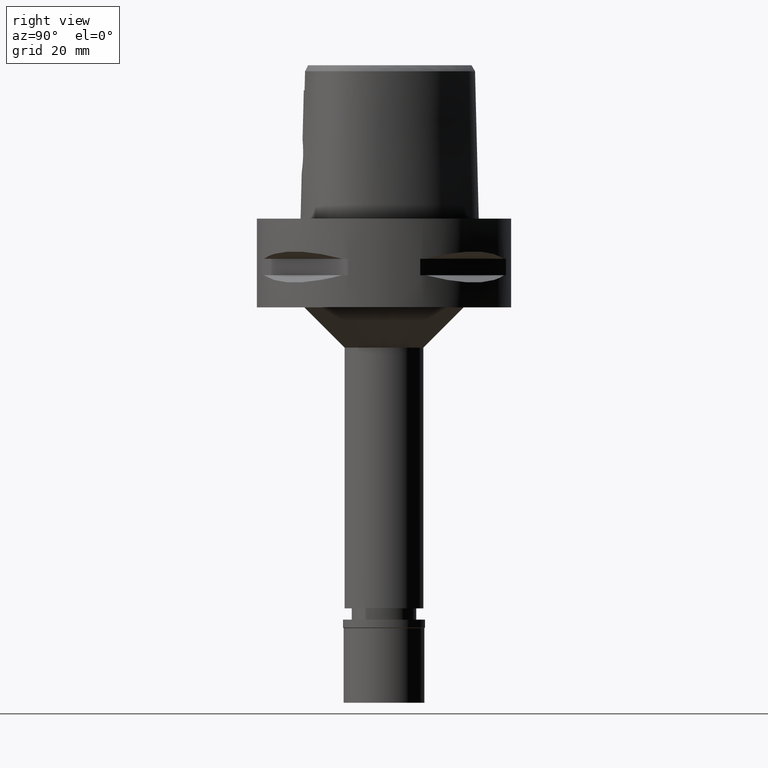
[diagram: clean part render]
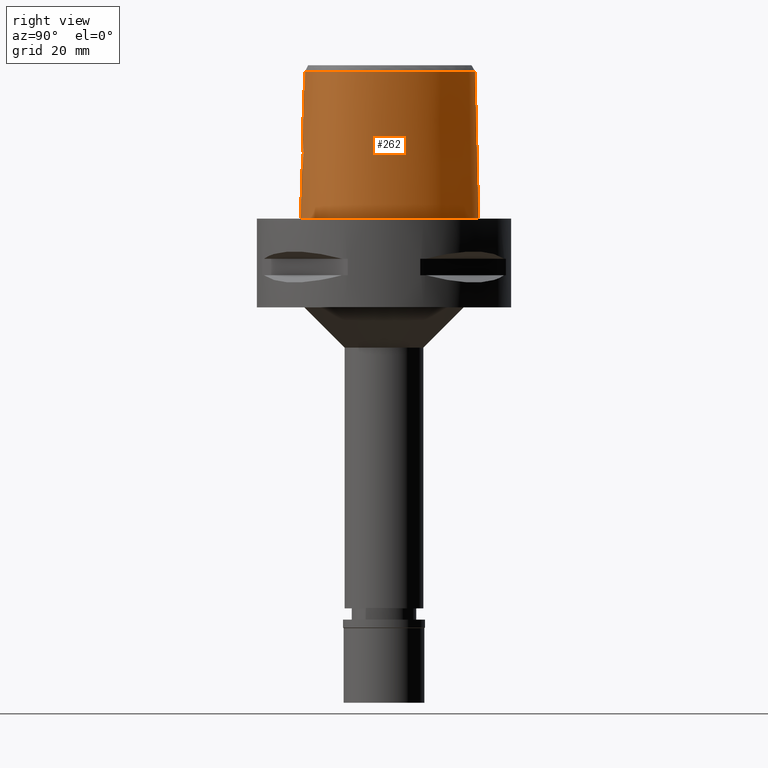
[diagram: same view with one face highlighted and labeled with its STEP entity id]
A machine part, right view. The second image highlights one B-rep face of the part: STEP entity #262.
In plain terms, the highlighted face is a freeform B-spline surface patch.
Its self-contained STEP definition (entity closure, byte-faithful):
#6 = CARTESIAN_POINT ( 'NONE',  ( 21.94536970524000097, -4.102220499718999491, 11.93048562255000000 ) ) ;
#29 = B_SPLINE_CURVE_WITH_KNOTS ( 'NONE', 3,
 ( #3188, #3884, #4318, #2393 ),
 .UNSPECIFIED., .F., .F.,
 ( 4, 4 ),
 ( 0.0000000000000000000, 1.000000000000000000 ),
 .UNSPECIFIED. ) ;
#36 = CARTESIAN_POINT ( 'NONE',  ( 10.91891095221367358, -18.03046396092988601, 36.52186680739949054 ) ) ;
#59 = CARTESIAN_POINT ( 'NONE',  ( 2.113823676601773727, -20.67500005945671404, -2.378463150037998026E-06 ) ) ;
#60 = CARTESIAN_POINT ( 'NONE',  ( 3.637738219117000238, -19.56971420299000286, 36.52185956443999970 ) ) ;
#83 = CARTESIAN_POINT ( 'NONE',  ( 20.09619608768813492, -10.23243839430414148, 36.52186680739949054 ) ) ;
#95 = CARTESIAN_POINT ( 'NONE',  ( 3.644654988696913733, -20.14185568960490258, 13.73169098995751902 ) ) ;
#110 = DIRECTION ( 'NONE',  ( 1.756137887816959434E-12, 0.02499051290962944413, -0.9996876883629776112 ) ) ;
#120 = CARTESIAN_POINT ( 'NONE',  ( 6.344715577655000160, -20.31619965500999925, -0.7304378952583999718 ) ) ;
#123 = CARTESIAN_POINT ( 'NONE',  ( 4.049643110176806893, -20.05399160878187814, 15.43795828973404838 ) ) ;
#144 = CARTESIAN_POINT ( 'NONE',  ( 18.12052889929999822, -13.74516014019999943, 24.59140914036999703 ) ) ;
#146 = CARTESIAN_POINT ( 'NONE',  ( 1.946611601997120244, -20.32311006286647981, 11.93862046598727567 ) ) ;
#166 = CARTESIAN_POINT ( 'NONE',  ( 16.38077671191999940, -14.94316433188999937, 37.25233265818000206 ) ) ;
#168 = CARTESIAN_POINT ( 'NONE',  ( 3.950323019400650892, -20.04135421479582391, 16.40274729697456380 ) ) ;
#193 = CARTESIAN_POINT ( 'NONE',  ( 3.749536200694281618, -20.04778253193092397, 17.03086640830614940 ) ) ;
#215 = CARTESIAN_POINT ( 'NONE',  ( 18.35112148454999925, -13.96357030471000016, 11.93048562255000000 ) ) ;
#243 = CARTESIAN_POINT ( 'NONE',  ( 2.361140904826829701, -20.12552479265204042, 18.79118822093445829 ) ) ;
#262 = ADVANCED_FACE ( 'NONE', ( #2095 ), #2864, .T. ) ;
#289 = CARTESIAN_POINT ( 'NONE',  ( 1.027682876504157905, -20.17741712424492917, 19.45809765211923903 ) ) ;
#296 = CARTESIAN_POINT ( 'NONE',  ( 0.8548392465216388958, 23.47500005946385926, -2.378463150037998450E-06 ) ) ;
#308 = CARTESIAN_POINT ( 'NONE',  ( 17.53318563102999761, 10.12278921368999995, 24.59140914036999703 ) ) ;
#314 = CARTESIAN_POINT ( 'NONE',  ( 1.675120599127616350, -20.15532933629850021, 19.18749499249319612 ) ) ;
#337 = CARTESIAN_POINT ( 'NONE',  ( 4.868968355899999878, 21.95285521187000199, 24.59140914036999703 ) ) ;
#364 = CARTESIAN_POINT ( 'NONE',  ( 7.580410842887999934, 21.33037926757000236, -0.7304378952583999718 ) ) ;
#373 = EDGE_CURVE ( 'NONE', #4096, #440, #1897, .T. ) ;
#390 = CARTESIAN_POINT ( 'NONE',  ( -0.6834383969709999507, 22.83968675119000125, 24.59140914036999703 ) ) ;
#419 = CARTESIAN_POINT ( 'NONE',  ( 0.5990981970547000213, 23.20165460144999869, 11.93048562255000000 ) ) ;
#440 = VERTEX_POINT ( 'NONE', #3906 ) ;
#467 = CARTESIAN_POINT ( 'NONE',  ( -1.023561814321999967E-12, -20.38876923348000147, 11.44999999999999929 ) ) ;
#480 = CARTESIAN_POINT ( 'NONE',  ( 3.714384130523536331, -20.13065104887487777, 13.88538127571058034 ) ) ;
#505 = CARTESIAN_POINT ( 'NONE',  ( -0.4561077450385999654, -20.69106756158999971, -0.7304378952583999718 ) ) ;
#507 = CARTESIAN_POINT ( 'NONE',  ( 2.758179676623380150, -20.25337897196575909, 12.53390918841277824 ) ) ;
#531 = CARTESIAN_POINT ( 'NONE',  ( -0.6657939487730001327, -19.73734192322999803, 37.25233265818000206 ) ) ;
#533 = CARTESIAN_POINT ( 'NONE',  ( 1.432005274344566148, -20.35315137661975626, 11.71134280122725535 ) ) ;
#554 = CARTESIAN_POINT ( 'NONE',  ( 14.68244497387000003, -17.23001773499000322, -0.7304378952583999718 ) ) ;
#556 = CARTESIAN_POINT ( 'NONE',  ( 4.038482248007202458, -20.06165359963148020, 15.18817722016131988 ) ) ;
#580 = CARTESIAN_POINT ( 'NONE',  ( 19.54161150941000002, -11.28235466359000050, 37.25233265818000206 ) ) ;
#583 = CARTESIAN_POINT ( 'NONE',  ( 2.570081009083676093, -20.27170108689810490, 12.36908902939309840 ) ) ;
#605 = CARTESIAN_POINT ( 'NONE',  ( 20.96392229020999665, -8.820258251828001050, 24.59140914036999703 ) ) ;
#631 = CARTESIAN_POINT ( 'NONE',  ( 2.144427845715513481, -20.13626349860822273, 18.93810770242302155 ) ) ;
#656 = CARTESIAN_POINT ( 'NONE',  ( 2.032175996677976215, -20.14130468680043862, 19.00576489868353391 ) ) ;
#697 = CARTESIAN_POINT ( 'NONE',  ( 7.420053094914999647, 21.05635737965999965, 11.93048562255000000 ) ) ;
#712 = ORIENTED_EDGE ( 'NONE', *, *, #3602, .T. ) ;
#722 = CARTESIAN_POINT ( 'NONE',  ( 21.05621876341999865, -0.4440252205710000233, 37.25233265818000206 ) ) ;
#727 = B_SPLINE_CURVE_WITH_KNOTS ( 'NONE', 3,
 ( #1374, #4181, #4583, #1070 ),
 .UNSPECIFIED., .F., .F.,
 ( 4, 4 ),
 ( 0.0000000000000000000, 1.000000000000000000 ),
 .UNSPECIFIED. ) ;
#749 = CARTESIAN_POINT ( 'NONE',  ( 2.438150569308000115, 22.68791622976999989, 24.59140914036999703 ) ) ;
#763 = CARTESIAN_POINT ( 'NONE',  ( 20.93173257653377561, -10.60431643046620209, -2.378463150037998450E-06 ) ) ;
#780 = CARTESIAN_POINT ( 'NONE',  ( 20.46725036658000008, 4.555493621393000403, 11.93048562255000000 ) ) ;
#781 = CARTESIAN_POINT ( 'NONE',  ( 19.55745538000610040, -11.29150212657816787, 36.52186680739949054 ) ) ;
#807 = CARTESIAN_POINT ( 'NONE',  ( 21.36961484937999955, -0.3886498188083000183, 24.59140914036999703 ) ) ;
#825 = B_SPLINE_CURVE_WITH_KNOTS ( 'NONE', 3,
 ( #1080, #2965, #1105, #4191 ),
 .UNSPECIFIED., .F., .F.,
 ( 4, 4 ),
 ( 0.0000000000000000000, 1.000000000000000000 ),
 .UNSPECIFIED. ) ;
#833 = CARTESIAN_POINT ( 'NONE',  ( -8.195366136956000144E-12, -20.67499999999999716, 5.699144859741998607E-14 ) ) ;
#856 = CARTESIAN_POINT ( 'NONE',  ( 18.56841069473898642, -14.16937992383618017, -2.378463150037998450E-06 ) ) ;
#858 = ORIENTED_EDGE ( 'NONE', *, *, #1134, .T. ) ;
#872 = CARTESIAN_POINT ( 'NONE',  ( 3.850246712570708052, -20.10780614032471547, 14.21172176769456996 ) ) ;
#895 = CARTESIAN_POINT ( 'NONE',  ( 4.050037399383524139, -20.04599349312467282, 15.75361975466950781 ) ) ;
#921 = CARTESIAN_POINT ( 'NONE',  ( 16.97022731444999977, -15.69280483540000048, -0.7304378952583999718 ) ) ;
#923 = CARTESIAN_POINT ( 'NONE',  ( 1.488028627206181564, -20.35026873354180310, 11.73319909950377848 ) ) ;
#952 = CARTESIAN_POINT ( 'NONE',  ( 2.953000302320486270, -20.23281254683991648, 12.72512295699128160 ) ) ;
#970 = CARTESIAN_POINT ( 'NONE',  ( 20.36546124981000006, -11.75800453477999952, -0.7304378952583999718 ) ) ;
#972 = CARTESIAN_POINT ( 'NONE',  ( 3.828814954410812099, -20.04436409866677593, 16.82317999465183789 ) ) ;
#1000 = CARTESIAN_POINT ( 'NONE',  ( 3.080229322185293661, -20.08617626112498300, 18.13071590546200795 ) ) ;
#1026 = CARTESIAN_POINT ( 'NONE',  ( 2.305334229536903035, -20.12831948498823564, 18.83048013503467999 ) ) ;
#1046 = CARTESIAN_POINT ( 'NONE',  ( 1.856701250909783107, -20.14848423775708142, 19.09993988372709595 ) ) ;
#1070 = CARTESIAN_POINT ( 'NONE',  ( 2.041042029990999821E-08, -19.88004246002000031, 31.80000004972000127 ) ) ;
#1080 = CARTESIAN_POINT ( 'NONE',  ( 2.041042029990999821E-08, -19.88004246002000031, 31.80000004972000127 ) ) ;
#1086 = CARTESIAN_POINT ( 'NONE',  ( -0.6718836804238998983, -20.05378833857999865, 24.59140914036999703 ) ) ;
#1101 = CARTESIAN_POINT ( 'NONE',  ( 2.564517739178003186, 23.29328130854583989, -2.378463150037998450E-06 ) ) ;
#1105 = CARTESIAN_POINT ( 'NONE',  ( 6.840683710790835725E-09, -20.08420636276085602, 23.63333344114085932 ) ) ;
#1113 = CARTESIAN_POINT ( 'NONE',  ( 10.34823226531000095, 18.70095485703000193, 24.59140914036999703 ) ) ;
#1114 = CARTESIAN_POINT ( 'NONE',  ( 7.108589361577385191, 20.52412316394646652, 36.52186680739949054 ) ) ;
#1125 = CARTESIAN_POINT ( 'NONE',  ( 4.711982846278999980E-11, 23.47499999999000053, 5.410486873340000012E-14 ) ) ;
#1134 = EDGE_CURVE ( 'NONE', #1738, #3613, #727, .T. ) ;
#1139 = CARTESIAN_POINT ( 'NONE',  ( 4.987110637009000591, 22.24795272965000237, 11.93048562255000000 ) ) ;
#1168 = CARTESIAN_POINT ( 'NONE',  ( 21.62788383969000350, -4.104079499420000054, 24.59140914036999703 ) ) ;
#1179 = CARTESIAN_POINT ( 'NONE',  ( 21.97832653674338133, -0.2810937395972353259, -2.378463150037998450E-06 ) ) ;
#1216 = CARTESIAN_POINT ( 'NONE',  ( 20.67704204633935916, -8.734985285293030088, 36.52186680739949054 ) ) ;
#1240 = CARTESIAN_POINT ( 'NONE',  ( 6.341471029776843515, -20.29812505886268781, -2.378463150037998450E-06 ) ) ;
#1241 = CARTESIAN_POINT ( 'NONE',  ( 7.300578979383803180, -19.07170738130560750, 36.52186680739949054 ) ) ;
#1277 = CARTESIAN_POINT ( 'NONE',  ( 1.537967824490842350, -20.34761404973959387, 11.75337532982797129 ) ) ;
#1300 = CARTESIAN_POINT ( 'NONE',  ( 11.13012652791999990, -18.61140108441999885, 11.93048562255000000 ) ) ;
#1302 = CARTESIAN_POINT ( 'NONE',  ( 2.808608589973233816, -20.24816661311869126, 12.58196638594414019 ) ) ;
#1328 = CARTESIAN_POINT ( 'NONE',  ( 1.886855603557999972, -20.71358920079000043, -0.7304378952583999718 ) ) ;
#1330 = CARTESIAN_POINT ( 'NONE',  ( 4.002664568992773120, -20.07397280446610210, 14.86850854358297980 ) ) ;
#1350 = CARTESIAN_POINT ( 'NONE',  ( 18.89485256679000003, -12.27684357966999862, 37.25233265818000206 ) ) ;
#1352 = CARTESIAN_POINT ( 'NONE',  ( 1.511996643077953673, -20.34900293593732457, 11.74281483622982414 ) ) ;
#1364 = CARTESIAN_POINT ( 'NONE',  ( -1.703764269641000346E-11, 22.56201468012000078, 36.52186680743999858 ) ) ;
#1371 = CARTESIAN_POINT ( 'NONE',  ( 1.836480365829000094, -19.76356488664000111, 37.25233265818000206 ) ) ;
#1373 = CARTESIAN_POINT ( 'NONE',  ( 2.520050460813181292, -20.11738995382088291, 18.67115940202009128 ) ) ;
#1374 = CARTESIAN_POINT ( 'NONE',  ( 3.736696120837999402, -19.67778323291999953, 31.80000004972999861 ) ) ;
#1389 = EDGE_CURVE ( 'NONE', #2939, #4096, #3917, .T. ) ;
#1411 = CARTESIAN_POINT ( 'NONE',  ( -8.195366136956000144E-12, -20.67499999999999716, 5.699144859741998607E-14 ) ) ;
#1480 = CARTESIAN_POINT ( 'NONE',  ( 5.098437039477886401, 22.52602544606216384, -2.378463150037998450E-06 ) ) ;
#1493 = CARTESIAN_POINT ( 'NONE',  ( 21.99640702129000047, -0.2778990152829000082, -0.7304378952583999718 ) ) ;
#1517 = CARTESIAN_POINT ( 'NONE',  ( 20.76670355424000292, 4.663413655832999716, -0.7304378952583999718 ) ) ;
#1532 = ORIENTED_EDGE ( 'NONE', *, *, #1762, .T. ) ;
#1539 = CARTESIAN_POINT ( 'NONE',  ( 18.08416038786999991, 10.44089487485000056, -0.7304378952583999718 ) ) ;
#1570 = CARTESIAN_POINT ( 'NONE',  ( 13.93560852528000105, 15.24203779722000007, 24.59140914036999703 ) ) ;
#1592 = CARTESIAN_POINT ( 'NONE',  ( 7.099337598967999874, 20.50831360383000046, 37.25233265818000206 ) ) ;
#1593 = CARTESIAN_POINT ( 'NONE',  ( 14.22011350746447356, -16.41829354688337617, 36.52186680739949054 ) ) ;
#1614 = CARTESIAN_POINT ( 'NONE',  ( 14.67337967371500973, -17.21410161432129016, -2.378463150037998450E-06 ) ) ;
#1651 = CARTESIAN_POINT ( 'NONE',  ( 3.686910441657663018, -20.13511169296128500, 13.82359477180880880 ) ) ;
#1677 = CARTESIAN_POINT ( 'NONE',  ( 14.52531259286000065, -16.95413741173999966, 11.93048562255000000 ) ) ;
#1679 = CARTESIAN_POINT ( 'NONE',  ( 3.559803832331458473, -20.05788146350371193, 17.44950363746658439 ) ) ;
#1703 = CARTESIAN_POINT ( 'NONE',  ( 3.328551379740232630, -20.18727222456294257, 13.19186960083942139 ) ) ;
#1729 = CARTESIAN_POINT ( 'NONE',  ( 18.58171406980000029, -14.18198046921999911, -0.7304378952583999718 ) ) ;
#1731 = CARTESIAN_POINT ( 'NONE',  ( 2.396851615579972616, -20.28741283536884765, 12.23208293719553907 ) ) ;
#1738 = VERTEX_POINT ( 'NONE', #1795 ) ;
#1755 = CARTESIAN_POINT ( 'NONE',  ( 20.65879041127999827, -10.48283616268999907, 11.93048562255000000 ) ) ;
#1757 = CARTESIAN_POINT ( 'NONE',  ( 3.745459306425568791, -20.04797394566475432, 17.04080371184709364 ) ) ;
#1762 = EDGE_CURVE ( 'NONE', #3613, #3504, #825, .T. ) ;
#1795 = CARTESIAN_POINT ( 'NONE',  ( 3.736696120837999402, -19.67778323291999953, 31.80000004972999861 ) ) ;
#1809 = CARTESIAN_POINT ( 'NONE',  ( 1.583085234474167713, -20.15857747892415119, 19.22794739783281415 ) ) ;
#1832 = CARTESIAN_POINT ( 'NONE',  ( 2.772326413960866098, -20.10389738242801627, 18.45539022241108995 ) ) ;
#1855 = CARTESIAN_POINT ( 'NONE',  ( 20.65947723640000078, -8.729764279378001035, 37.25233265818000206 ) ) ;
#1875 = VECTOR ( 'NONE', #3170, 1000.000000000000114 ) ;
#1882 = CARTESIAN_POINT ( 'NONE',  ( 21.68301093532999957, -0.3332744170456000132, 11.93048562255000000 ) ) ;
#1897 = B_SPLINE_CURVE_WITH_KNOTS ( 'NONE', 3,
 ( #833, #59, #1240, #2813, #1614, #4369, #856, #2424, #2786, #763, #3440, #4722, #4999, #1179, #3550, #4665, #2359, #5023, #2692, #1480, #1101, #296, #1125 ),
 .UNSPECIFIED., .F., .F.,
 ( 4, 1, 1, 1, 1, 1, 1, 1, 1, 1, 1, 1, 1, 1, 1, 1, 1, 1, 1, 1, 4 ),
 ( 0.0000000000000000000, 0.08333333333340001148, 0.1666666666667000196, 0.2083333333333000081, 0.2500000000000000000, 0.2916666666666999919, 0.3125000000000000000, 0.3333333333333000081, 0.3541666666666000163, 0.3749999999998999689, 0.4166666666666000163, 0.4583333333332000326, 0.4999999999998999689, 0.5833333333331000015, 0.6666666666664999852, 0.7499999999998000488, 0.8333333333329999704, 0.8749999999997000177, 0.9166666666664000651, 0.9583333333329999704, 1.000000000000000000 ),
 .UNSPECIFIED. ) ;
#1907 = CARTESIAN_POINT ( 'NONE',  ( 14.17879752472000021, 15.44741190161999889, 11.93048562255000000 ) ) ;
#1934 = CARTESIAN_POINT ( 'NONE',  ( 2.503210888097000097, 22.99958930949000191, 11.93048562255000000 ) ) ;
#1935 = CARTESIAN_POINT ( 'NONE',  ( 0.7901461619515810497, 22.56201467849847475, 36.52186680739949054 ) ) ;
#1959 = CARTESIAN_POINT ( 'NONE',  ( -0.6642815129079999714, 22.52377613061999995, 37.25233265818000206 ) ) ;
#1986 = CARTESIAN_POINT ( 'NONE',  ( 0.5826623197888000094, 22.88447421996000131, 24.59140914036999703 ) ) ;
#2013 = CARTESIAN_POINT ( 'NONE',  ( 17.90324024157250093, -13.53935104436661696, 36.52186680739949054 ) ) ;
#2049 = CARTESIAN_POINT ( 'NONE',  ( 1.527965580144859281, -20.34815231994709350, 11.74928068373194456 ) ) ;
#2072 = CARTESIAN_POINT ( 'NONE',  ( 3.918456791373616799, -20.04170609324362573, 16.53266420031105710 ) ) ;
#2095 = FACE_OUTER_BOUND ( 'NONE', #2332, .T. ) ;
#2117 = EDGE_CURVE ( 'NONE', #1738, #5035, #29, .T. ) ;
#2122 = CARTESIAN_POINT ( 'NONE',  ( 4.048221369819504645, -20.05572751809215148, 15.37605551826758443 ) ) ;
#2149 = CARTESIAN_POINT ( 'NONE',  ( 10.91263697500000163, -18.01320772277999893, 37.25233265818000206 ) ) ;
#2151 = CARTESIAN_POINT ( 'NONE',  ( 3.765593220700957477, -20.04704214534181261, 16.99108095766527171 ) ) ;
#2173 = CARTESIAN_POINT ( 'NONE',  ( 17.88993631403999984, -13.52674997569999960, 37.25233265818000206 ) ) ;
#2198 = CARTESIAN_POINT ( 'NONE',  ( 2.673904828757363017, -20.10928166633798853, 18.54472627324833667 ) ) ;
#2220 = CARTESIAN_POINT ( 'NONE',  ( 19.88562079788938064, 4.345879946637187352, 36.52186680739949054 ) ) ;
#2242 = CARTESIAN_POINT ( 'NONE',  ( 17.27359236349170146, 9.972912859140468100, 36.52186680739949054 ) ) ;
#2315 = CARTESIAN_POINT ( 'NONE',  ( 22.26285557078999844, -4.100361500017000616, -0.7304378952583999718 ) ) ;
#2332 = EDGE_LOOP ( 'NONE', ( #4564, #712, #3685, #858, #1532, #2703, #5061, #3269 ) ) ;
#2343 = CARTESIAN_POINT ( 'NONE',  ( 20.16779717891000345, 4.447573586954000291, 24.59140914036999703 ) ) ;
#2344 = CARTESIAN_POINT ( 'NONE',  ( 4.467522181836483419, -19.48130276147297479, 36.52186680739949054 ) ) ;
#2359 = CARTESIAN_POINT ( 'NONE',  ( 14.40795643526205971, 15.64093753858763947, -2.378463150037998450E-06 ) ) ;
#2371 = CARTESIAN_POINT ( 'NONE',  ( 10.55288400347000000, 18.94467580935000228, 11.93048562255000000 ) ) ;
#2393 = CARTESIAN_POINT ( 'NONE',  ( 3.637738219117000238, -19.56971420299000286, 36.52185956443999970 ) ) ;
#2424 = CARTESIAN_POINT ( 'NONE',  ( 19.64947370681345618, -12.82525394126626850, -2.378463150037998450E-06 ) ) ;
#2425 = CARTESIAN_POINT ( 'NONE',  ( 16.39211273426861482, -14.95758104715864967, 36.52186680739949054 ) ) ;
#2436 = CARTESIAN_POINT ( 'NONE',  ( 1.319600680390620617, -20.35863312411228421, 11.66994494017200168 ) ) ;
#2461 = CARTESIAN_POINT ( 'NONE',  ( -1.023561814321999967E-12, -20.38876923348000147, 11.44999999999999929 ) ) ;
#2480 = CARTESIAN_POINT ( 'NONE',  ( -0.4520500659788000419, -20.37458439078000083, 11.93048562255000000 ) ) ;
#2508 = CARTESIAN_POINT ( 'NONE',  ( -0.4479923869190000074, -20.05810121996000106, 24.59140914036999703 ) ) ;
#2510 = CARTESIAN_POINT ( 'NONE',  ( 3.169150985202622284, -20.20760989054315715, 12.97742286930292011 ) ) ;
#2532 = CARTESIAN_POINT ( 'NONE',  ( 20.09084466967999916, -11.59945457772000132, 11.93048562255000000 ) ) ;
#2534 = CARTESIAN_POINT ( 'NONE',  ( 3.787426346252616316, -20.04607170149531115, 16.93525315949890242 ) ) ;
#2562 = CARTESIAN_POINT ( 'NONE',  ( -0.6779734120746999659, -20.37023475394000016, 11.93048562255000000 ) ) ;
#2564 = CARTESIAN_POINT ( 'NONE',  ( 2.963657114689479233, -20.09293563006356820, 18.26079471621578065 ) ) ;
#2593 = B_SPLINE_CURVE_WITH_KNOTS ( 'NONE', 3,
 ( #2631, #1935, #3071, #4629, #1114, #2682, #5064, #2242, #2220, #3814, #3427, #4985, #1216, #83, #781, #3945, #2013, #2425, #1593, #36, #1241, #2344, #60 ),
 .UNSPECIFIED., .F., .F.,
 ( 4, 1, 1, 1, 1, 1, 1, 1, 1, 1, 1, 1, 1, 1, 1, 1, 1, 1, 1, 1, 4 ),
 ( 0.0000000000000000000, 0.04382683003322104115, 0.08765366006602121063, 0.1314804900989267056, 0.1753073201318322283, 0.2629609801974326921, 0.3506146402631384884, 0.4382683003289493673, 0.5259219603945499699, 0.5697487904274552983, 0.6135756204602555997, 0.6574024504931611501, 0.6793158655095612453, 0.7012292805259614514, 0.7231426955423614356, 0.7450561105587615307, 0.7888829405916670812, 0.8327097706245726316, 0.8765366006573727109, 0.9641902607230785627, 1.000000000000000000 ),
 .UNSPECIFIED. ) ;
#2610 = CARTESIAN_POINT ( 'NONE',  ( 1.613182323483802527, -20.15753140428487100, 19.21500890072734435 ) ) ;
#2631 = CARTESIAN_POINT ( 'NONE',  ( -1.703764269641000346E-11, 22.56201468012000078, 36.52186680743999858 ) ) ;
#2637 = CARTESIAN_POINT ( 'NONE',  ( 3.265869583394488629, -20.07528142228558821, 17.89964299955810745 ) ) ;
#2655 = CARTESIAN_POINT ( 'NONE',  ( 19.40779762268000042, -12.64961922650000048, 11.93048562255000000 ) ) ;
#2661 = CARTESIAN_POINT ( 'NONE',  ( 0.4948470747599079678, -20.18628283969000847, 19.54999999999999716 ) ) ;
#2681 = CARTESIAN_POINT ( 'NONE',  ( 17.80867300945000054, 10.28184204426999848, 11.93048562255000000 ) ) ;
#2682 = CARTESIAN_POINT ( 'NONE',  ( 10.15538781007201230, 18.47129526703152180, 36.52186680739949054 ) ) ;
#2692 = CARTESIAN_POINT ( 'NONE',  ( 7.571159464475671896, 21.31457036397561922, -2.378463150037998450E-06 ) ) ;
#2703 = ORIENTED_EDGE ( 'NONE', *, *, #4832, .F. ) ;
#2708 = CARTESIAN_POINT ( 'NONE',  ( 4.750826074792000142, 21.65775769409999896, 37.25233265818000206 ) ) ;
#2733 = CARTESIAN_POINT ( 'NONE',  ( -0.4685451932327999724, 23.16976065811999774, 11.93048562255000000 ) ) ;
#2786 = CARTESIAN_POINT ( 'NONE',  ( 20.34961803716080198, -11.74885745165764916, -2.378463150037998450E-06 ) ) ;
#2813 = CARTESIAN_POINT ( 'NONE',  ( 11.23259758770517713, -18.89324224368825611, -2.378463150037998450E-06 ) ) ;
#2827 = CARTESIAN_POINT ( 'NONE',  ( 2.628027080903071244, -20.26624238139270417, 12.41747670475414367 ) ) ;
#2853 = CARTESIAN_POINT ( 'NONE',  ( 3.289399613304539116, -20.19244639184434931, 13.13636645578957562 ) ) ;
#2864 = B_SPLINE_SURFACE_WITH_KNOTS ( 'NONE', 3, 3, ( 
 ( #3746, #2562, #1086, #531 ),
 ( #505, #2480, #2508, #2902 ),
 ( #1328, #4431, #3696, #1371 ),
 ( #120, #4818, #2878, #3259 ),
 ( #3672, #1300, #4083, #2149 ),
 ( #554, #1677, #2929, #4063 ),
 ( #921, #4130, #4478, #166 ),
 ( #1729, #215, #144, #2173 ),
 ( #3309, #2655, #4868, #1350 ),
 ( #970, #2532, #4107, #580 ),
 ( #3720, #1755, #3335, #4891 ),
 ( #2950, #4505, #605, #1855 ),
 ( #3426, #4984, #4653, #3479 ),
 ( #2315, #6, #1168, #4221 ),
 ( #1493, #1882, #807, #722 ),
 ( #1517, #780, #2343, #5038 ),
 ( #1539, #2681, #308, #3070 ),
 ( #3122, #1907, #1570, #3890 ),
 ( #4628, #2371, #1113, #3865 ),
 ( #364, #697, #3099, #1592 ),
 ( #4680, #1139, #337, #2708 ),
 ( #4273, #1934, #749, #3506 ),
 ( #3148, #419, #1986, #3944 ),
 ( #5063, #2733, #4705, #4245 ),
 ( #4298, #3919, #390, #1959 ) ),
 .UNSPECIFIED., .F., .F., .F.,
 ( 4, 1, 1, 1, 1, 1, 1, 1, 1, 1, 1, 1, 1, 1, 1, 1, 1, 1, 1, 1, 1, 1, 4 ),
 ( 4, 4 ),
 ( -0.008985960173572999157, 0.0000000000000000000, 0.08333333333340001148, 0.1666666666667000196, 0.2083333333333000081, 0.2500000000000000000, 0.2916666666666999919, 0.3125000000000000000, 0.3333333333333000081, 0.3541666666666000163, 0.3749999999998999689, 0.4166666666666000163, 0.4583333333332000326, 0.4999999999998999689, 0.5833333333331000015, 0.6666666666664999852, 0.7499999999998000488, 0.8333333333329999704, 0.8749999999997000177, 0.9166666666664000651, 0.9583333333329999704, 1.000000000000000000, 1.011710456763000199 ),
 ( -4.474835561125000269E-09, 1.000000228216999965 ),
 .UNSPECIFIED. ) ;
#2878 = CARTESIAN_POINT ( 'NONE',  ( 6.232237551629999928, -19.68961161494000223, 24.59140914036999703 ) ) ;
#2880 = CARTESIAN_POINT ( 'NONE',  ( 2.853007646188346236, -20.24348516854156088, 12.62547111175711656 ) ) ;
#2902 = CARTESIAN_POINT ( 'NONE',  ( -0.4439347078590999973, -19.74161804914999863, 37.25233265818000206 ) ) ;
#2904 = CARTESIAN_POINT ( 'NONE',  ( 0.2519697368790784764, -20.38876923348000503, 11.44999999999999929 ) ) ;
#2929 = CARTESIAN_POINT ( 'NONE',  ( 14.36818021184999949, -16.67825708849000321, 24.59140914036999703 ) ) ;
#2931 = CARTESIAN_POINT ( 'NONE',  ( 2.830175095661728424, -20.24590160278924955, 12.60298252333811853 ) ) ;
#2939 = VERTEX_POINT ( 'NONE', #4064 ) ;
#2950 = CARTESIAN_POINT ( 'NONE',  ( 21.57281239781999815, -9.001246196727999305, -0.7304378952583999718 ) ) ;
#2952 = CARTESIAN_POINT ( 'NONE',  ( 0.0000000000000000000, -20.18628283968999781, 19.55000000000000071 ) ) ;
#2965 = CARTESIAN_POINT ( 'NONE',  ( 6.820716025290848667E-09, -19.98212988583243188, 27.71666688228172148 ) ) ;
#2978 = CARTESIAN_POINT ( 'NONE',  ( 1.767192251262259095, -20.15197845540247457, 19.14519926631555435 ) ) ;
#2998 = VECTOR ( 'NONE', #110, 999.9999999999998863 ) ;
#3068 = B_SPLINE_CURVE_WITH_KNOTS ( 'NONE', 3,
 ( #2461, #2904, #3235, #4109, #4893, #4085, #2436, #533, #923, #1352, #2049, #1277, #3311, #146, #3651, #1731, #583, #2827, #4456, #507, #1302, #2931, #3629, #2880, #952, #4042, #2510, #3287, #2853, #1703, #3699, #4845, #4382, #95, #1651, #480, #4480, #872, #3261, #1330, #4407, #556, #4012, #2122, #123, #4792, #895, #4433, #168, #2072, #4870, #972, #2534, #2151, #3722, #193, #1757, #3337, #1679, #4821, #2637, #4132, #1000, #3794, #2564, #4939, #3433, #4556, #3771, #1832, #2198, #1373, #4582, #243, #1026, #631, #656, #1046, #2978, #314, #2610, #1809, #289, #2661, #2952 ),
 .UNSPECIFIED., .F., .F.,
 ( 4, 2, 2, 1, 1, 1, 2, 2, 2, 2, 2, 1, 1, 2, 2, 2, 2, 2, 2, 1, 2, 2, 2, 2, 1, 2, 2, 2, 2, 1, 1, 1, 2, 2, 2, 2, 2, 1, 1, 2, 2, 2, 2, 2, 2, 1, 2, 2, 4 ),
 ( 0.0000000000000000000, 0.06250000000000659195, 0.09375000000000995037, 0.1093750000000115602, 0.1171875000000123096, 0.1210937500000126010, 0.1230468750000128231, 0.1250000000000130451, 0.1875000000000219547, 0.2187500000000265621, 0.2343750000000288936, 0.2421875000000299205, 0.2460937500000304479, 0.2480468750000305866, 0.2500000000000306977, 0.2812500000000291989, 0.2968750000000283107, 0.3125000000000274225, 0.3437500000000252576, 0.3593750000000240363, 0.3671875000000234257, 0.3750000000000227596, 0.4375000000000152101, 0.4687500000000116018, 0.4843750000000097145, 0.4921875000000086042, 0.5000000000000074385, 0.5624999999999971134, 0.5937499999999920064, 0.6093749999999894529, 0.6171874999999877875, 0.6210937499999873435, 0.6230468749999874545, 0.6249999999999875655, 0.6874999999999914513, 0.7187499999999934497, 0.7343749999999944489, 0.7421874999999951150, 0.7460937499999955591, 0.7480468749999960032, 0.7499999999999963363, 0.7812499999999963363, 0.7968749999999963363, 0.8124999999999963363, 0.8437499999999967804, 0.8593749999999971134, 0.8671874999999973355, 0.8749999999999974465, 1.000000000000000000 ),
 .UNSPECIFIED. ) ;
#3070 = CARTESIAN_POINT ( 'NONE',  ( 17.25769825260999824, 9.963736383107999472, 37.25233265818000206 ) ) ;
#3071 = CARTESIAN_POINT ( 'NONE',  ( 2.376843874102932741, 22.39422497744361706, 36.52186680739949054 ) ) ;
#3099 = CARTESIAN_POINT ( 'NONE',  ( 7.259695346941000160, 20.78233549174000316, 24.59140914036999703 ) ) ;
#3122 = CARTESIAN_POINT ( 'NONE',  ( 14.42198652415999938, 15.65278600602999859, -0.7304378952583999718 ) ) ;
#3148 = CARTESIAN_POINT ( 'NONE',  ( 0.6155340743205999221, 23.51883498295000052, -0.7304378952583999718 ) ) ;
#3170 = DIRECTION ( 'NONE',  ( -6.261628370897819813E-13, -0.02499051295389925070, -0.9996876883618708298 ) ) ;
#3188 = CARTESIAN_POINT ( 'NONE',  ( 3.736696120837999402, -19.67778323291999953, 31.80000004972999861 ) ) ;
#3235 = CARTESIAN_POINT ( 'NONE',  ( 0.5100579658811679185, -20.38531276215466548, 11.47358267918783525 ) ) ;
#3257 = EDGE_CURVE ( 'NONE', #4443, #440, #3274, .T. ) ;
#3259 = CARTESIAN_POINT ( 'NONE',  ( 6.175998538616999767, -19.37631759490000150, 37.25233265818000206 ) ) ;
#3261 = CARTESIAN_POINT ( 'NONE',  ( 3.927790621348893119, -20.09243382074338768, 14.47756111163803716 ) ) ;
#3269 = ORIENTED_EDGE ( 'NONE', *, *, #373, .T. ) ;
#3274 = LINE ( 'NONE', #1364, #2998 ) ;
#3287 = CARTESIAN_POINT ( 'NONE',  ( 3.210108431848634147, -20.20255916619497327, 13.02975361490010719 ) ) ;
#3309 = CARTESIAN_POINT ( 'NONE',  ( 19.66427015062999928, -12.83600704991000008, -0.7304378952583999718 ) ) ;
#3311 = CARTESIAN_POINT ( 'NONE',  ( 1.734379789055718657, -20.33697246834250905, 11.83436638252599060 ) ) ;
#3335 = CARTESIAN_POINT ( 'NONE',  ( 20.36913755896999945, -10.35391835319999920, 24.59140914036999703 ) ) ;
#3337 = CARTESIAN_POINT ( 'NONE',  ( 3.664274183422404629, -20.05181531545090579, 17.23726368440694401 ) ) ;
#3426 = CARTESIAN_POINT ( 'NONE',  ( 22.07548129646999868, -6.850245536254999656, -0.7304378952583999718 ) ) ;
#3427 = CARTESIAN_POINT ( 'NONE',  ( 21.32871516739715645, -4.105831245034491594, 36.52186680739949054 ) ) ;
#3433 = CARTESIAN_POINT ( 'NONE',  ( 2.894506219205473130, -20.09690955887031905, 18.33274339089158289 ) ) ;
#3440 = CARTESIAN_POINT ( 'NONE',  ( 21.55524831729281487, -8.996025407625182879, -2.378463150037998450E-06 ) ) ;
#3479 = CARTESIAN_POINT ( 'NONE',  ( 21.13154852731999966, -6.714587025968000056, 37.25233265818000206 ) ) ;
#3504 = VERTEX_POINT ( 'NONE', #4602 ) ;
#3506 = CARTESIAN_POINT ( 'NONE',  ( 2.373090250518000044, 22.37624315004999787, 37.25233265818000206 ) ) ;
#3550 = CARTESIAN_POINT ( 'NONE',  ( 20.74942746505291424, 4.657187520273626369, -2.378463150037998450E-06 ) ) ;
#3589 = CARTESIAN_POINT ( 'NONE',  ( 2.041042029990999821E-08, -19.88004246002000031, 31.80000004972000127 ) ) ;
#3602 = EDGE_CURVE ( 'NONE', #4443, #5035, #2593, .T. ) ;
#3613 = VERTEX_POINT ( 'NONE', #3589 ) ;
#3616 = CARTESIAN_POINT ( 'NONE',  ( 3.637738219117000238, -19.56971420299000286, 36.52185956443999970 ) ) ;
#3629 = CARTESIAN_POINT ( 'NONE',  ( 2.844541275134897518, -20.24438467540247544, 12.61708719066250417 ) ) ;
#3651 = CARTESIAN_POINT ( 'NONE',  ( 2.282207029746225135, -20.29700151028871602, 12.15162930637070282 ) ) ;
#3672 = CARTESIAN_POINT ( 'NONE',  ( 11.23887130437999993, -18.91049776523999881, -0.7304378952583999718 ) ) ;
#3685 = ORIENTED_EDGE ( 'NONE', *, *, #2117, .F. ) ;
#3696 = CARTESIAN_POINT ( 'NONE',  ( 1.853272111737999994, -20.08023965802000177, 24.59140914036999703 ) ) ;
#3699 = CARTESIAN_POINT ( 'NONE',  ( 3.437023659522212338, -20.17240543791114860, 13.35378256640114003 ) ) ;
#3720 = CARTESIAN_POINT ( 'NONE',  ( 20.94844326360000153, -10.61175397217999894, -0.7304378952583999718 ) ) ;
#3722 = CARTESIAN_POINT ( 'NONE',  ( 3.755991642143220677, -20.04748304465435282, 17.01495889863300448 ) ) ;
#3746 = CARTESIAN_POINT ( 'NONE',  ( -0.6840631437256000646, -20.68668116929999812, -0.7304378952583999718 ) ) ;
#3771 = CARTESIAN_POINT ( 'NONE',  ( 2.871987183428396762, -20.09819914941970964, 18.35556622516757130 ) ) ;
#3794 = CARTESIAN_POINT ( 'NONE',  ( 3.003234361619508963, -20.09064592609323441, 18.21745801850057589 ) ) ;
#3814 = CARTESIAN_POINT ( 'NONE',  ( 21.07429999882434046, -0.4408303635841457346, 36.52186680739949054 ) ) ;
#3865 = CARTESIAN_POINT ( 'NONE',  ( 10.14358052715000014, 18.45723390471999892, 37.25233265818000206 ) ) ;
#3884 = CARTESIAN_POINT ( 'NONE',  ( 3.704239288984441103, -19.64128042389065598, 33.37395322129999897 ) ) ;
#3890 = CARTESIAN_POINT ( 'NONE',  ( 13.69241952584000011, 15.03666369281000037, 37.25233265818000206 ) ) ;
#3906 = CARTESIAN_POINT ( 'NONE',  ( 4.711982846278999980E-11, 23.47499999999000053, 5.410486873340000012E-14 ) ) ;
#3917 = LINE ( 'NONE', #467, #1875 ) ;
#3919 = CARTESIAN_POINT ( 'NONE',  ( -0.7025952810340000410, 23.15559737176999988, 11.93048562255000000 ) ) ;
#3944 = CARTESIAN_POINT ( 'NONE',  ( 0.5662264425228999976, 22.56729383847000037, 37.25233265818000206 ) ) ;
#3945 = CARTESIAN_POINT ( 'NONE',  ( 18.90964962508256164, -12.28759713487558081, 36.52186680739949054 ) ) ;
#4012 = CARTESIAN_POINT ( 'NONE',  ( 4.045013207771207320, -20.05847505277924370, 15.28275217491502858 ) ) ;
#4042 = CARTESIAN_POINT ( 'NONE',  ( 3.042491796687226913, -20.22274507510632091, 12.82354767343081114 ) ) ;
#4063 = CARTESIAN_POINT ( 'NONE',  ( 14.21104783084000012, -16.40237676523999966, 37.25233265818000206 ) ) ;
#4064 = CARTESIAN_POINT ( 'NONE',  ( -1.023561814321999967E-12, -20.38876923348000147, 11.44999999999999929 ) ) ;
#4083 = CARTESIAN_POINT ( 'NONE',  ( 11.02138175145999988, -18.31230440359999889, 24.59140914036999703 ) ) ;
#4085 = CARTESIAN_POINT ( 'NONE',  ( 1.222756221967545187, -20.36284569854002768, 11.63840396453706205 ) ) ;
#4096 = VERTEX_POINT ( 'NONE', #1411 ) ;
#4107 = CARTESIAN_POINT ( 'NONE',  ( 19.81622808954000092, -11.44090462064999869, 24.59140914036999703 ) ) ;
#4109 = CARTESIAN_POINT ( 'NONE',  ( 0.8988479711759834734, -20.37494334817867525, 11.54879813003858224 ) ) ;
#4130 = CARTESIAN_POINT ( 'NONE',  ( 16.77374378026999935, -15.44292466756999893, 11.93048562255000000 ) ) ;
#4132 = CARTESIAN_POINT ( 'NONE',  ( 3.128678969663171383, -20.08334280844271547, 18.07279819847083857 ) ) ;
#4181 = CARTESIAN_POINT ( 'NONE',  ( 2.503154195451446018, -19.81241979350722460, 31.80000012137770682 ) ) ;
#4191 = CARTESIAN_POINT ( 'NONE',  ( 0.0000000000000000000, -20.18628283968999781, 19.55000000000000071 ) ) ;
#4221 = CARTESIAN_POINT ( 'NONE',  ( 21.31039797413999892, -4.105938499121999818, 37.25233265818000206 ) ) ;
#4245 = CARTESIAN_POINT ( 'NONE',  ( -0.4431573284443999783, 22.53713843786000126, 37.25233265818000206 ) ) ;
#4273 = CARTESIAN_POINT ( 'NONE',  ( 2.568271206886000080, 23.31126238921000038, -0.7304378952583999718 ) ) ;
#4298 = CARTESIAN_POINT ( 'NONE',  ( -0.7217521650970999403, 23.47150799234000118, -0.7304378952583999718 ) ) ;
#4318 = CARTESIAN_POINT ( 'NONE',  ( 3.671249151389730514, -19.60525176641679579, 34.94790639287000289 ) ) ;
#4364 = CARTESIAN_POINT ( 'NONE',  ( -1.703764269641000346E-11, 22.56201468012000078, 36.52186680743999858 ) ) ;
#4369 = CARTESIAN_POINT ( 'NONE',  ( 16.95889176285072608, -15.67838871881346563, -2.378463150037998450E-06 ) ) ;
#4382 = CARTESIAN_POINT ( 'NONE',  ( 3.599362307491498658, -20.14875877779059721, 13.64217581387066858 ) ) ;
#4407 = CARTESIAN_POINT ( 'NONE',  ( 4.020738798819290416, -20.06858537622277439, 14.99755720161221006 ) ) ;
#4431 = CARTESIAN_POINT ( 'NONE',  ( 1.870063857647999983, -20.39691442940999977, 11.93048562255000000 ) ) ;
#4433 = CARTESIAN_POINT ( 'NONE',  ( 4.026067555606399395, -20.04243146964170563, 16.01312629722099601 ) ) ;
#4443 = VERTEX_POINT ( 'NONE', #4364 ) ;
#4456 = CARTESIAN_POINT ( 'NONE',  ( 2.714817435290554748, -20.25772213911185915, 12.49437854280254712 ) ) ;
#4478 = CARTESIAN_POINT ( 'NONE',  ( 16.57726024608999893, -15.19304449973000004, 24.59140914036999703 ) ) ;
#4480 = CARTESIAN_POINT ( 'NONE',  ( 3.727121516744279273, -20.12854809717473259, 13.91496385434309069 ) ) ;
#4505 = CARTESIAN_POINT ( 'NONE',  ( 21.26836734401000228, -8.910752224277999289, 11.93048562255000000 ) ) ;
#4556 = CARTESIAN_POINT ( 'NONE',  ( 2.880386059684747035, -20.09771851976560697, 18.34709984349563072 ) ) ;
#4564 = ORIENTED_EDGE ( 'NONE', *, *, #3257, .F. ) ;
#4582 = CARTESIAN_POINT ( 'NONE',  ( 2.467729343594776914, -20.12009802658482727, 18.71204267792716891 ) ) ;
#4583 = CARTESIAN_POINT ( 'NONE',  ( 1.251533272181988066, -19.88005341395238901, 31.80000012137770682 ) ) ;
#4602 = CARTESIAN_POINT ( 'NONE',  ( 0.0000000000000000000, -20.18628283968999781, 19.55000000000000071 ) ) ;
#4628 = CARTESIAN_POINT ( 'NONE',  ( 10.75753574163999993, 19.18839676167000263, -0.7304378952583999718 ) ) ;
#4629 = CARTESIAN_POINT ( 'NONE',  ( 4.757642236485208009, 21.67478320247448664, 36.52186680739949054 ) ) ;
#4653 = CARTESIAN_POINT ( 'NONE',  ( 21.44619278369999904, -6.759806529396999331, 24.59140914036999703 ) ) ;
#4665 = CARTESIAN_POINT ( 'NONE',  ( 18.06826693702150877, 10.43171877988828378, -2.378463150037998450E-06 ) ) ;
#4680 = CARTESIAN_POINT ( 'NONE',  ( 5.105252918117000327, 22.54305024741999830, -0.7304378952583999718 ) ) ;
#4705 = CARTESIAN_POINT ( 'NONE',  ( -0.4558512608386000031, 22.85344954799000305, 24.59140914036999703 ) ) ;
#4722 = CARTESIAN_POINT ( 'NONE',  ( 22.05732880232591597, -6.847636727244351462, -2.378463150037998450E-06 ) ) ;
#4792 = CARTESIAN_POINT ( 'NONE',  ( 4.049995275655163596, -20.05320010482691728, 15.46762644421692379 ) ) ;
#4818 = CARTESIAN_POINT ( 'NONE',  ( 6.288476564642000000, -20.00290563497000207, 11.93048562255000000 ) ) ;
#4821 = CARTESIAN_POINT ( 'NONE',  ( 3.346444325181741508, -20.07049246070043580, 17.78503332968104189 ) ) ;
#4832 = EDGE_CURVE ( 'NONE', #2939, #3504, #3068, .T. ) ;
#4845 = CARTESIAN_POINT ( 'NONE',  ( 3.504989208433931580, -20.16277707621805604, 13.46647361527020337 ) ) ;
#4868 = CARTESIAN_POINT ( 'NONE',  ( 19.15132509474000244, -12.46323140307999999, 24.59140914036999703 ) ) ;
#4870 = CARTESIAN_POINT ( 'NONE',  ( 3.860403433738069712, -20.04330035600996140, 16.72651338064443394 ) ) ;
#4891 = CARTESIAN_POINT ( 'NONE',  ( 20.07948470664999974, -10.22500054371999845, 37.25233265818000206 ) ) ;
#4893 = CARTESIAN_POINT ( 'NONE',  ( 1.028701314431048619, -20.37062275902201947, 11.58049741886274830 ) ) ;
#4939 = CARTESIAN_POINT ( 'NONE',  ( 2.915545606164545500, -20.09570297646316206, 18.31119129211848318 ) ) ;
#4984 = CARTESIAN_POINT ( 'NONE',  ( 21.76083704009000286, -6.805026032826000382, 11.93048562255000000 ) ) ;
#4985 = CARTESIAN_POINT ( 'NONE',  ( 21.14970177531226270, -6.717195943318907680, 36.52186680739949054 ) ) ;
#4999 = CARTESIAN_POINT ( 'NONE',  ( 22.24453913818917172, -4.100468749650577394, -2.378463150037998450E-06 ) ) ;
#5023 = CARTESIAN_POINT ( 'NONE',  ( 10.74572894903732312, 19.17433598328276290, -2.378463150037998450E-06 ) ) ;
#5035 = VERTEX_POINT ( 'NONE', #3616 ) ;
#5038 = CARTESIAN_POINT ( 'NONE',  ( 19.86834399125000061, 4.339653552515000179, 37.25233265818000206 ) ) ;
#5061 = ORIENTED_EDGE ( 'NONE', *, *, #1389, .T. ) ;
#5063 = CARTESIAN_POINT ( 'NONE',  ( -0.4812391256269000217, 23.48607176825999687, -0.7304378952583999718 ) ) ;
#5064 = CARTESIAN_POINT ( 'NONE',  ( 13.70645019738829085, 15.04851265230296242, 36.52186680739949054 ) ) ;